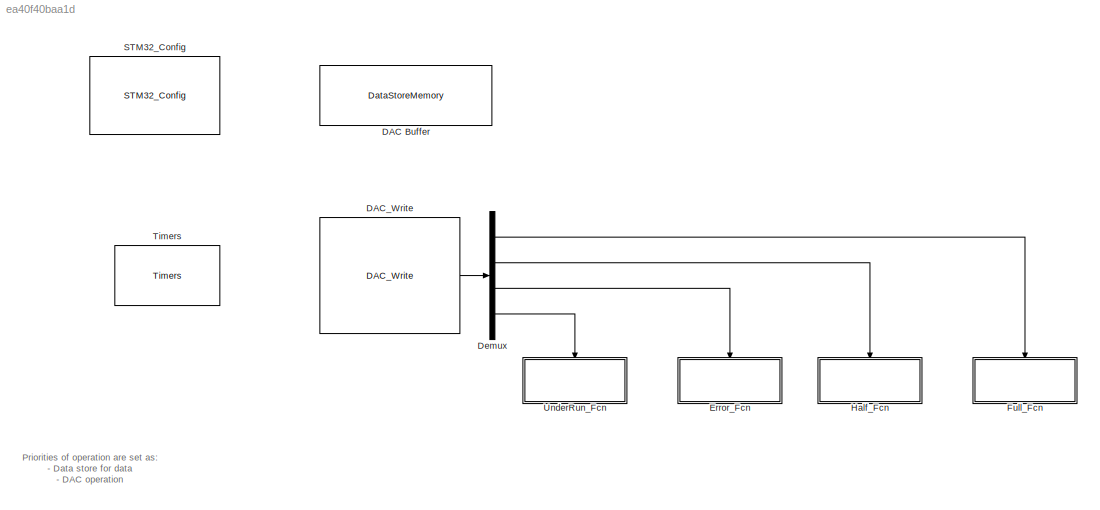
MODEL slx_ea40f40baa1d
KIND model
CONFIG AbsTol = auto
CONFIG EnableMultiTasking = on
CONFIG FixedStep = auto
CONFIG MaxStep = auto
CONFIG MinStep = auto
CONFIG RelTol = 1e-3
CONFIG SampleTimeConstraint = Unconstrained
CONFIG Solver = FixedStepDiscrete
CONFIG SolverName = FixedStepDiscrete
CONFIG StartTime = 0.0
CONFIG StopTime = 10.0
BLOCK [DataStoreMemory] DAC Buffer
  AttributesFormatString = Priority=%<Priority>
  DataStoreName = DAC1_DmaCh1
  InitialValue = [10 20 30 40 50 60 70 80 90 100 ]
  OutDataTypeStr = uint16
  Priority = 1
  RTWStateStorageClass = ImportedExternPointer
  ReadBeforeWriteMsg = warning
  ShowAdditionalParam = off
  SignalType = real
  WriteAfterReadMsg = warning
  WriteAfterWriteMsg = warning
BLOCK [Reference] DAC_Write  REF=DAC_Lib/DAC_Write
  AttributesFormatString = Priority=%<Priority>
  Ports = [0, 1]
  Priority = 2
  SourceBlock = DAC_Lib/DAC_Write
  SourceProductName = Target Support Package - STM32 Adapter
  SourceType = DAC_Write
BLOCK [Demux] Demux
  DisplayOption = bar
  Ports = [1, 4]
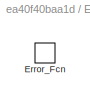
BLOCK [SubSystem] Error_Fcn
  Ports = [0, 0, 0, 1]
  RequestExecContextInheritance = off
  TreatAsAtomicUnit = on
BLOCK [TriggerPort] Error_Fcn/Error_Fcn
  Ports = []
  StatesWhenEnabling = held
  TriggerType = function-call
  VariantControl = Variant
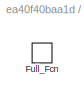
BLOCK [SubSystem] Full_Fcn 
  Ports = [0, 0, 0, 1]
  RequestExecContextInheritance = off
  TreatAsAtomicUnit = on
BLOCK [TriggerPort] Full_Fcn /Full_Fcn
  Ports = []
  StatesWhenEnabling = held
  TriggerType = function-call
  VariantControl = Variant
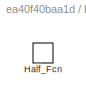
BLOCK [SubSystem] Half_Fcn
  Ports = [0, 0, 0, 1]
  RequestExecContextInheritance = off
  TreatAsAtomicUnit = on
BLOCK [TriggerPort] Half_Fcn/Half_Fcn
  Ports = []
  StatesWhenEnabling = held
  TriggerType = function-call
  VariantControl = Variant
BLOCK [Reference] STM32_Config  REF=STM32_Config_Lib/STM32_Config
  Ports = []
  Priority = 0
  SourceBlock = STM32_Config_Lib/STM32_Config
  SourceProductName = Target Support Package - STM32 Adapter
  SourceType = STM32_Config
BLOCK [Reference] Timers  REF=TIMERS_Lib/Timers
  AttributesFormatString = Priority=%<Priority>
  Ports = []
  Priority = 3
  SourceBlock = TIMERS_Lib/Timers
  SourceProductName = Target Support Package - STM32 Adapter
  SourceType = Timers
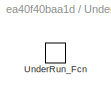
BLOCK [SubSystem] UnderRun_Fcn
  Ports = [0, 0, 0, 1]
  RequestExecContextInheritance = off
  TreatAsAtomicUnit = on
BLOCK [TriggerPort] UnderRun_Fcn/UnderRun_Fcn
  Ports = []
  StatesWhenEnabling = held
  TriggerType = function-call
  VariantControl = Variant
ANNOTATION (root): Priorities of operation are set as: - Data store for data - DAC operation
LINE DAC_Write:1 -> Demux:1
LINE Demux:1 -> Full_Fcn :trigger
LINE Demux:2 -> Half_Fcn:trigger
LINE Demux:3 -> Error_Fcn:trigger
LINE Demux:4 -> UnderRun_Fcn:trigger
